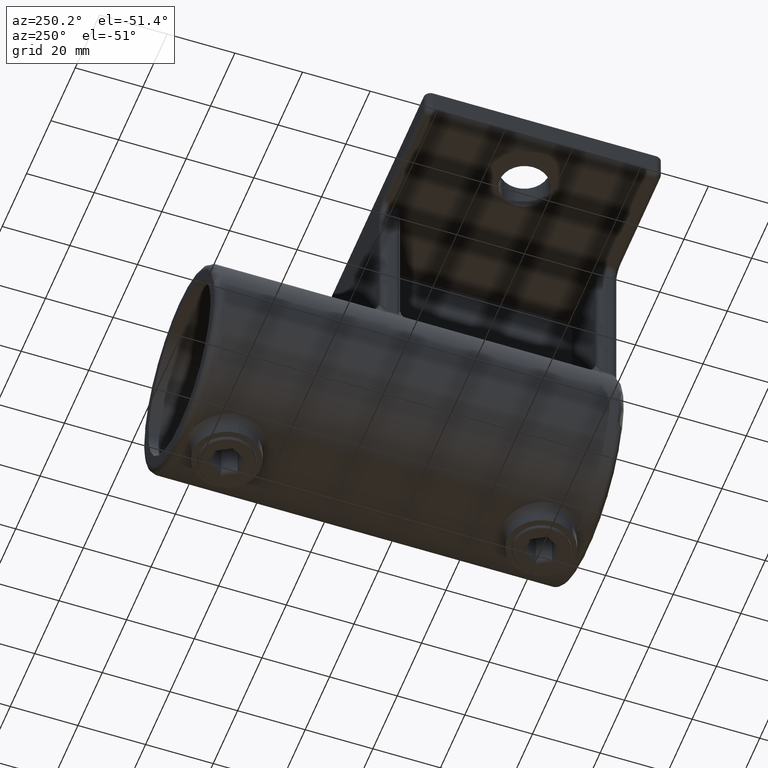
[diagram: clean part render]
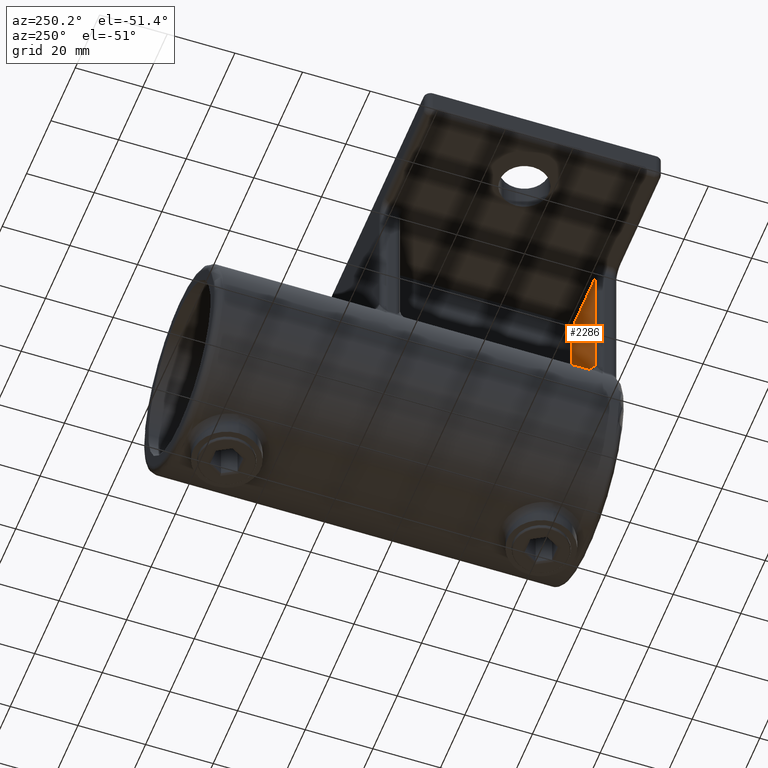
[diagram: same view with one face highlighted and labeled with its STEP entity id]
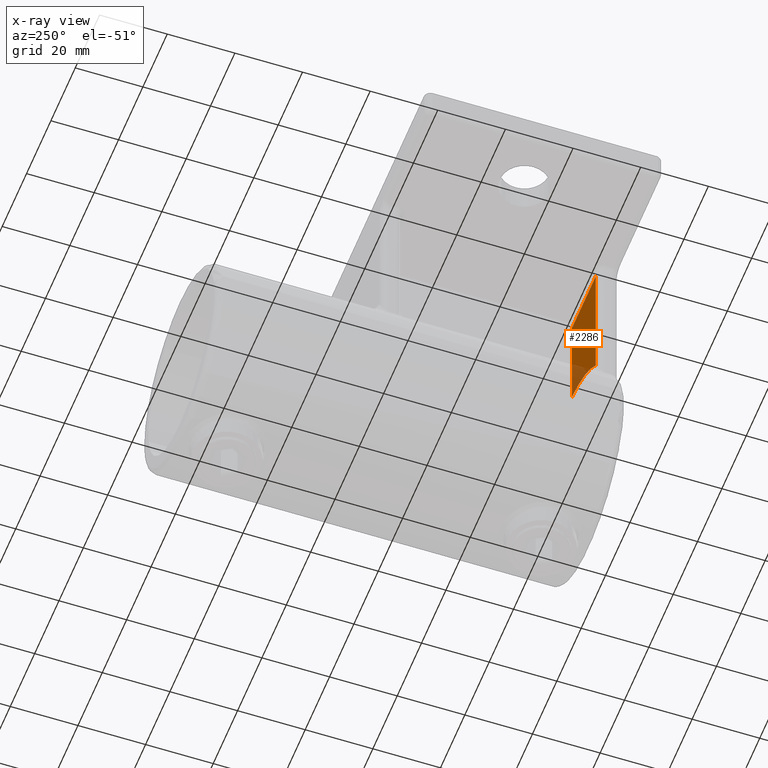
[diagram: x-ray of the same camera — body ghosted, the highlighted face saturated]
A machine part, auxiliary view. The second image highlights one B-rep face of the part: STEP entity #2286.
The next image is the same camera in x-ray: the body ghosted, the highlighted face saturated — about 14% of this face is hidden behind the body in this view.
In plain terms, the highlighted planar face has unit normal (0, -1, 0).
Its self-contained STEP definition (entity closure, byte-faithful):
#27 = AXIS2_PLACEMENT_3D ( 'NONE', #3167, #3176, #3514 ) ;
#209 = FACE_OUTER_BOUND ( 'NONE', #3756, .T. ) ;
#226 = EDGE_CURVE ( 'NONE', #741, #1012, #1038, .T. ) ;
#395 = CARTESIAN_POINT ( 'NONE',  ( -24.50000000000000000, -29.00000000000000355, -500000.0000000000582 ) ) ;
#404 = LINE ( 'NONE', #3757, #3594 ) ;
#741 = VERTEX_POINT ( 'NONE', #1088 ) ;
#841 = CARTESIAN_POINT ( 'NONE',  ( -22.50000000000000355, -29.00000000000000355, -2.000000000009549694 ) ) ;
#1012 = VERTEX_POINT ( 'NONE', #1349 ) ;
#1038 = CIRCLE ( 'NONE', #27, 32.50000000000000000 ) ;
#1088 = CARTESIAN_POINT ( 'NONE',  ( -3.000000000000007105, -29.00000000000000355, -32.63875774956659370 ) ) ;
#1304 = DIRECTION ( 'NONE',  ( 1.000000000000000000, 0.000000000000000000, -0.000000000000000000 ) ) ;
#1349 = CARTESIAN_POINT ( 'NONE',  ( -22.50000000000000355, -29.00000000000000355, -41.54792120088286111 ) ) ;
#1650 = DIRECTION ( 'NONE',  ( 0.000000000000000000, -1.000000000000000000, 0.000000000000000000 ) ) ;
#1739 = AXIS2_PLACEMENT_3D ( 'NONE', #395, #1650, #2767 ) ;
#2230 = VERTEX_POINT ( 'NONE', #4237 ) ;
#2246 = ORIENTED_EDGE ( 'NONE', *, *, #3472, .T. ) ;
#2286 = ADVANCED_FACE ( 'NONE', ( #209 ), #3144, .F. ) ;
#2442 = LINE ( 'NONE', #4772, #3415 ) ;
#2714 = VECTOR ( 'NONE', #4965, 1000.000000000000000 ) ;
#2767 = DIRECTION ( 'NONE',  ( 0.000000000000000000, -0.000000000000000000, -1.000000000000000000 ) ) ;
#3019 = EDGE_CURVE ( 'NONE', #4110, #2230, #2442, .T. ) ;
#3144 = PLANE ( 'NONE',  #1739 ) ;
#3167 = CARTESIAN_POINT ( 'NONE',  ( 0.000000000000000000, -29.00000000000000355, -65.00000000000000000 ) ) ;
#3176 = DIRECTION ( 'NONE',  ( 0.000000000000000000, -1.000000000000000000, 0.000000000000000000 ) ) ;
#3415 = VECTOR ( 'NONE', #1304, 1000.000000000000000 ) ;
#3472 = EDGE_CURVE ( 'NONE', #1012, #4110, #404, .T. ) ;
#3514 = DIRECTION ( 'NONE',  ( 0.000000000000000000, 0.000000000000000000, -1.000000000000000000 ) ) ;
#3527 = EDGE_CURVE ( 'NONE', #741, #2230, #4069, .T. ) ;
#3594 = VECTOR ( 'NONE', #4144, 1000.000000000000000 ) ;
#3756 = EDGE_LOOP ( 'NONE', ( #2246, #3780, #4912, #4739 ) ) ;
#3757 = CARTESIAN_POINT ( 'NONE',  ( -22.50000000000000355, -29.00000000000000355, -500000.0000000000582 ) ) ;
#3775 = CARTESIAN_POINT ( 'NONE',  ( -3.000000000000007105, -29.00000000000000355, -500000.0000000000582 ) ) ;
#3780 = ORIENTED_EDGE ( 'NONE', *, *, #3019, .T. ) ;
#4069 = LINE ( 'NONE', #3775, #2714 ) ;
#4110 = VERTEX_POINT ( 'NONE', #841 ) ;
#4144 = DIRECTION ( 'NONE',  ( -0.000000000000000000, 0.000000000000000000, 1.000000000000000000 ) ) ;
#4237 = CARTESIAN_POINT ( 'NONE',  ( -3.000000000000007105, -29.00000000000000355, -2.000000000123236532 ) ) ;
#4739 = ORIENTED_EDGE ( 'NONE', *, *, #226, .T. ) ;
#4772 = CARTESIAN_POINT ( 'NONE',  ( -3.000000000000006217, -29.00000000000000355, -2.000000000009549694 ) ) ;
#4912 = ORIENTED_EDGE ( 'NONE', *, *, #3527, .F. ) ;
#4965 = DIRECTION ( 'NONE',  ( -0.000000000000000000, -0.000000000000000000, 1.000000000000000000 ) ) ;